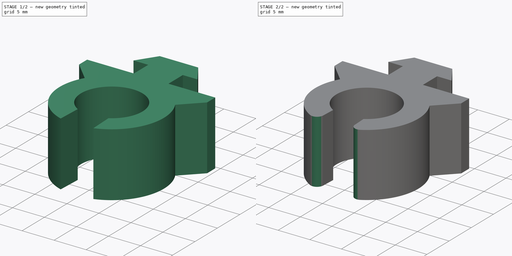
[diagram: build sequence overview — one tinted view per stage of 2, left to right]
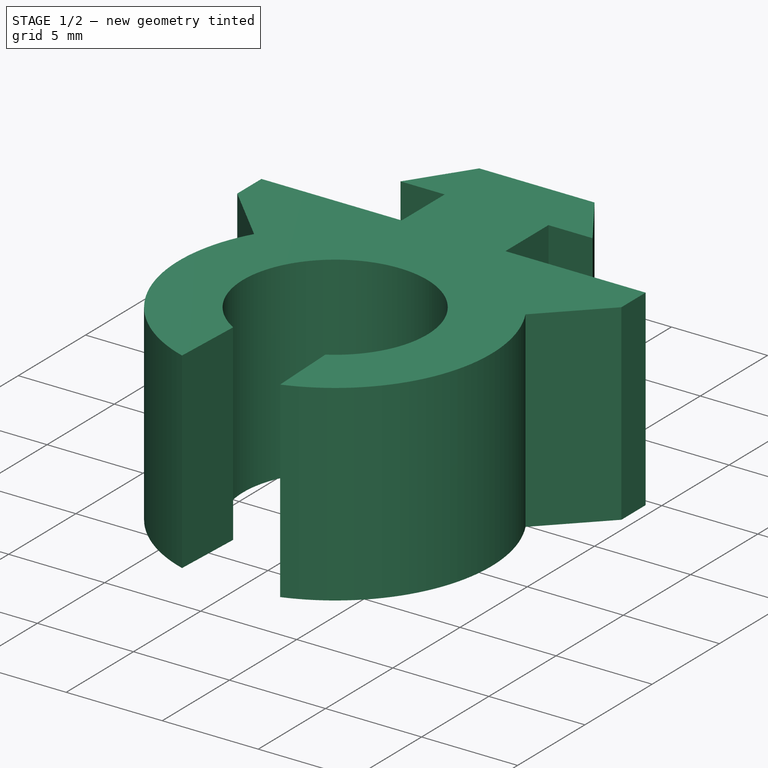
[diagram: stage 1 of 2 — iso view after this stage's code; geometry added in this stage tinted green]
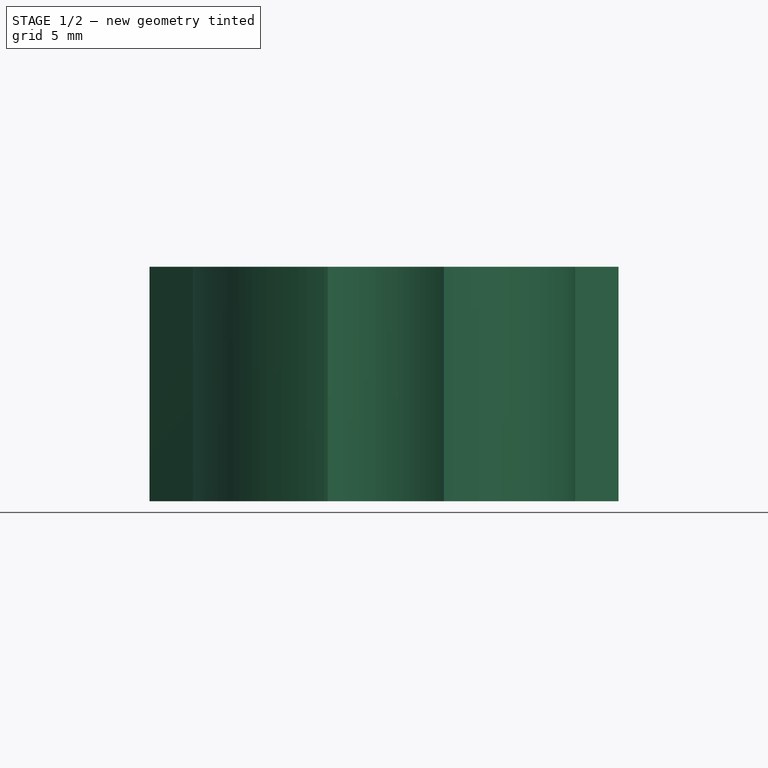
[diagram: stage 1 of 2 — front view after this stage's code; geometry added in this stage tinted green]
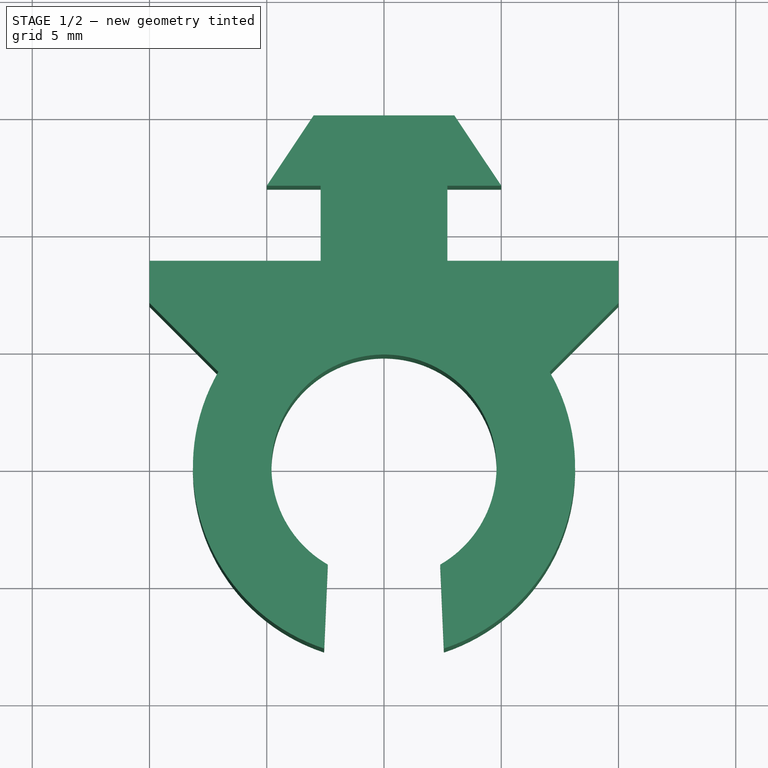
[diagram: stage 1 of 2 — top view after this stage's code; geometry added in this stage tinted green]
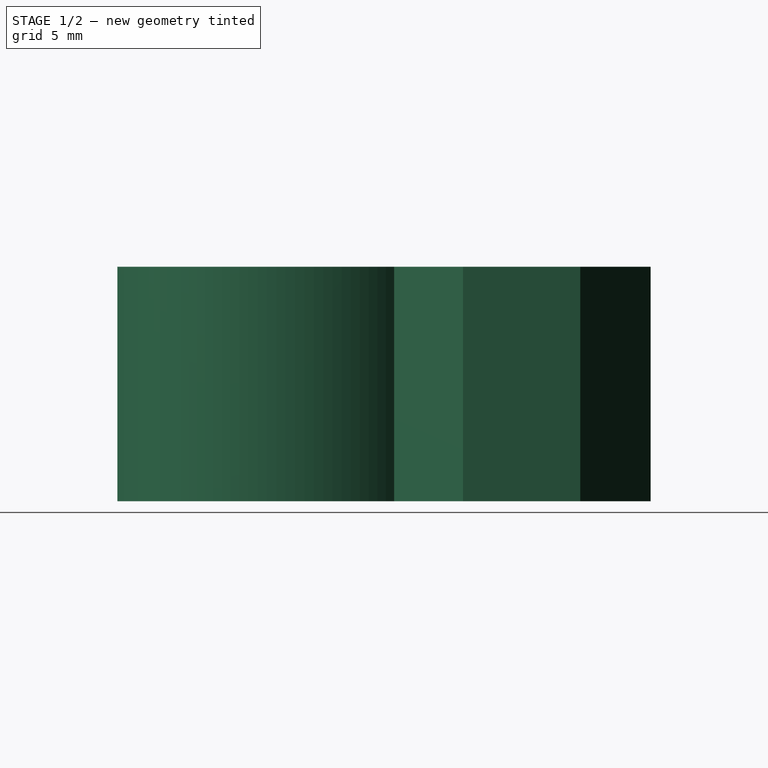
[diagram: stage 1 of 2 — right view after this stage's code; geometry added in this stage tinted green]
FCSTD DOCUMENT
Label: CableHolder
objects: Sketcher::SketchObject×2, PartDesign::Pad×1, PartDesign::Pocket×1, PartDesign::Fillet×1
note: 7 computed .brp shape members not serialized (recipe doc carries the construction recipe); baked Part::Feature solids carry a one-line shape summary decoded from their .brp

FEATURE [Sketcher::SketchObject] Sketch
  sketch-geometry (15):
    g0: ArcOfCircle CenterX=0 CenterY=0 CenterZ=0 NormalX=0 NormalY=0 NormalZ=1 Radius=8.15 StartAngle=2.61951 EndAngle=6.80527
    g1: LineSegment StartX=-10 StartY=8.8 StartZ=0 EndX=-2.7 EndY=8.8 EndZ=0
    g2: LineSegment StartX=10 StartY=8.8 StartZ=0 EndX=10 EndY=7 EndZ=0
    g3: LineSegment StartX=10 StartY=7 StartZ=0 EndX=7.06428 EndY=4.06428 EndZ=0
    g4: LineSegment StartX=-10 StartY=7 StartZ=0 EndX=-10 EndY=8.8 EndZ=0
    g5: LineSegment StartX=-7.06428 StartY=4.06428 StartZ=0 EndX=-10 EndY=7 EndZ=0
    g6: GeomPoint [constr] X=0 Y=8.8 Z=0
    g7: LineSegment StartX=-2.7 StartY=8.8 StartZ=0 EndX=-2.7 EndY=12 EndZ=0
    g8: LineSegment StartX=-2.7 StartY=12 StartZ=0 EndX=-5 EndY=12 EndZ=0
    g9: LineSegment StartX=-5 StartY=12 StartZ=0 EndX=-3 EndY=15 EndZ=0
    g10: LineSegment StartX=-3 StartY=15 StartZ=0 EndX=3 EndY=15 EndZ=0
    g11: LineSegment StartX=3 StartY=15 StartZ=0 EndX=5 EndY=12 EndZ=0
    g12: LineSegment StartX=5 StartY=12 StartZ=0 EndX=2.7 EndY=12 EndZ=0
    g13: LineSegment StartX=2.7 StartY=12 StartZ=0 EndX=2.7 EndY=8.8 EndZ=0
    g14: LineSegment StartX=2.7 StartY=8.8 StartZ=0 EndX=10 EndY=8.8 EndZ=0
  constraints (41):
    c: Coincident(g0,g-1)
    c: Coincident(g14,g2)
    c: Coincident(g2,g3)
    c: Coincident(g5,g4)
    c: Coincident(g4,g1)
    c: Vertical(g2)
    c: Vertical(g4)
    c: Coincident(g0,g5)
    c: Coincident(g0,g3)
    c: Equal(g2,g4)
    c: Equal(g5,g3)
    c: Symmetric(g1,g14,g6)
    c: PointOnObject(g6,g-2)
    c: Horizontal(g1)
    c: Vertical(g7)
    c: Perpendicular(g7,g8)
    c: Coincident(g8,g9)
    c: Coincident(g9,g10)
    c: Horizontal(g10)
    c: Coincident(g10,g11)
    c: Coincident(g11,g12)
    c: Horizontal(g12)
    c: Coincident(g12,g13)
    c: Vertical(g13)
    c: Coincident(g1,g7)
    c: Coincident(g14,g13)
    c: Tangent(g1,g14)
    c: Equal(g1,g14)
    c: Equal(g8,g12)
    c: Equal(g7,g13)
    c: Equal(g9,g11)
    c: DistanceY(g11,g2) = -3.2
    c: DistanceX(g10) = 6
    c: DistanceY(g8,g9) = 3
    c: DistanceX(g1,g2) = 20
    c: DistanceX(g1,g13) = 5.4
    c: DistanceY(g-1,g1) = 8.8
    c: DistanceY(g4) = 1.8
    c: Radius(g0) = 8.15
    c: Perpendicular(g5,g3)
    c: DistanceX(g8,g11) = 10
FEATURE [PartDesign::Pad] Pad
  Length = 10
  Length2 = 100
  Sketch = -> Sketch
  Type = 0
FEATURE [Sketcher::SketchObject] Sketch001
  Placement = pos=(0,0,10) rot=(0,0,1;0rad)
  Support = -> Pad [Face16]
  sketch-geometry (5):
    g0: ArcOfCircle CenterX=0 CenterY=0 CenterZ=0 NormalX=0 NormalY=0 NormalZ=1 Radius=4.8 StartAngle=5.23599 EndAngle=10.472
    g1: LineSegment StartX=-2.4 StartY=-4.15692 StartZ=0 EndX=-2.61411 EndY=-9.15692 EndZ=0
    g2: LineSegment StartX=-2.61411 StartY=-9.15692 StartZ=0 EndX=2.61411 EndY=-9.15692 EndZ=0
    g3: LineSegment StartX=2.61411 StartY=-9.15692 StartZ=0 EndX=2.4 EndY=-4.15692 EndZ=0
    g4: GeomPoint [constr] X=0 Y=-9.15692 Z=0
  constraints (13):
    c: Coincident(g0,g-1)
    c: Radius(g0) = 4.8
    c: Coincident(g1,g2)
    c: Horizontal(g2)
    c: Coincident(g2,g3)
    c: Coincident(g0,g3)
    c: Coincident(g0,g1)
    c: Symmetric(g1,g2,g4)
    c: PointOnObject(g4,g-2)
    c: DistanceX(g0,g0) = 4.8
    c: Equal(g1,g3)
    c: Angle(g1,g3) = 0.085591
    c: DistanceY(g3) = 5
FEATURE [PartDesign::Pocket] Pocket
  Length = 5
  Sketch = -> Sketch001
  Type = 1
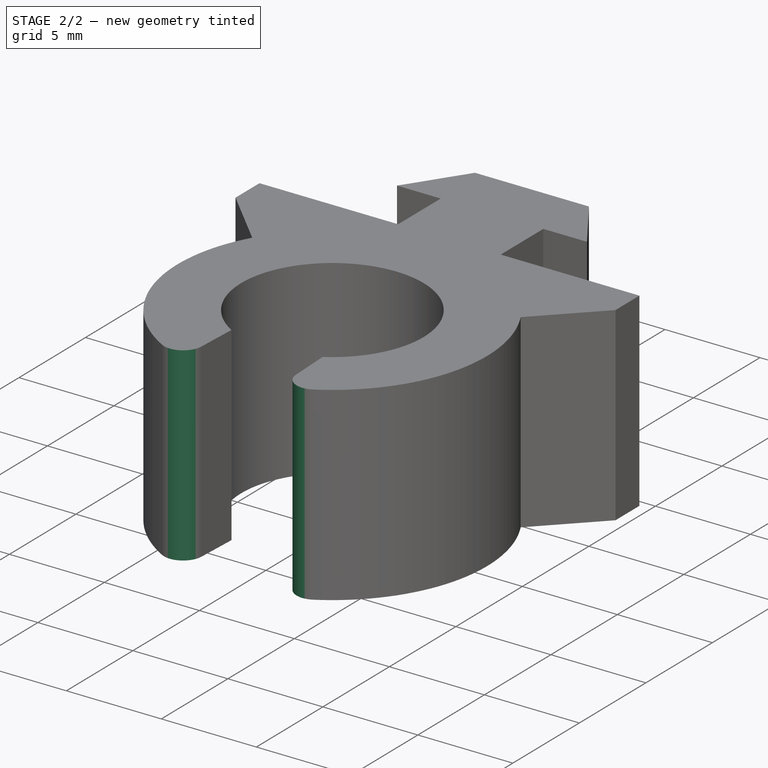
[diagram: stage 2 of 2 — iso view after this stage's code; geometry added in this stage tinted green]
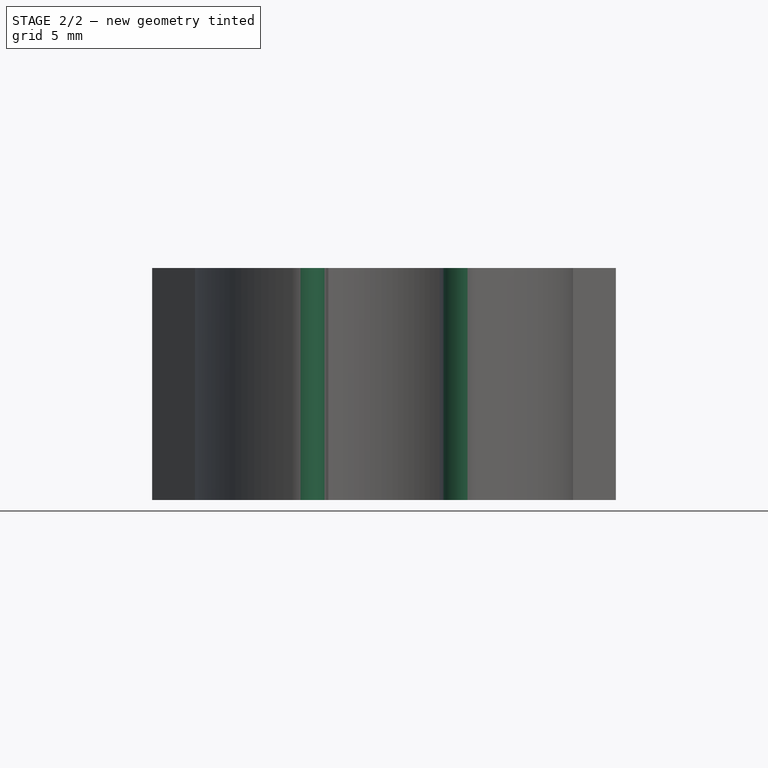
[diagram: stage 2 of 2 — front view after this stage's code; geometry added in this stage tinted green]
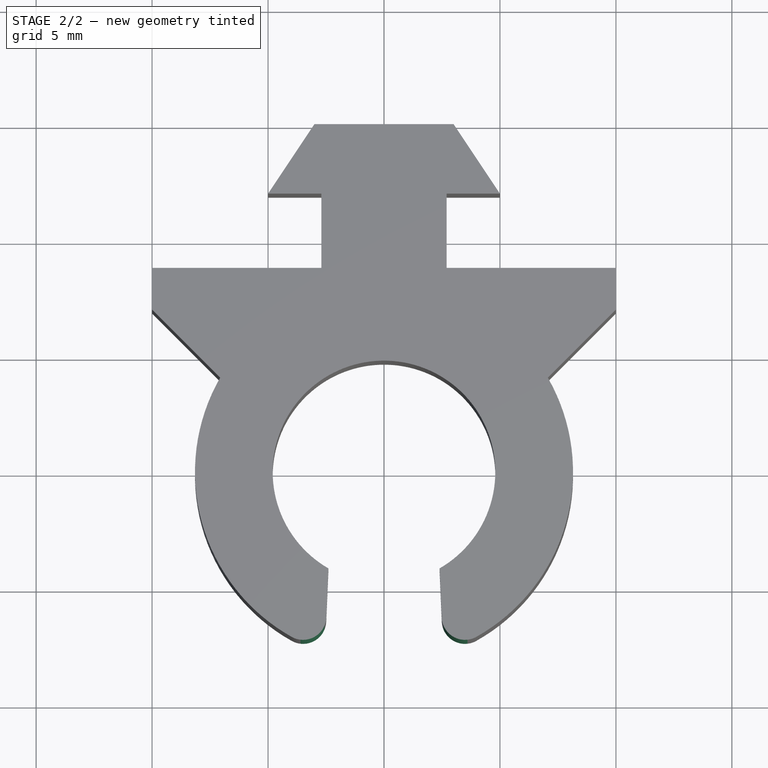
[diagram: stage 2 of 2 — top view after this stage's code; geometry added in this stage tinted green]
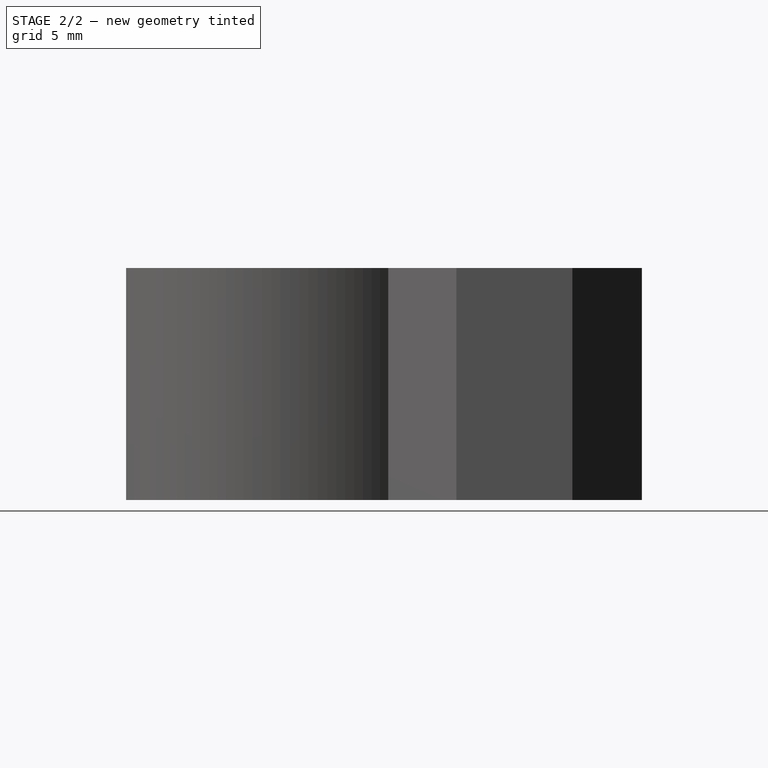
[diagram: stage 2 of 2 — right view after this stage's code; geometry added in this stage tinted green]
FEATURE [PartDesign::Fillet] Fillet
  Base = -> Pocket [Edge53,Edge8]
  Radius = 1
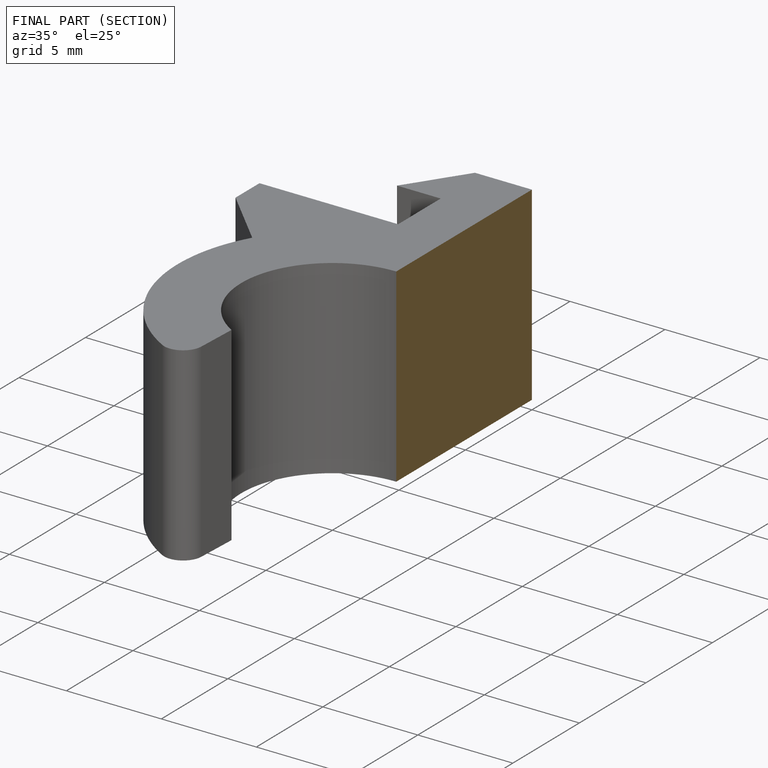
[diagram: finished part — half-section view (interior)]
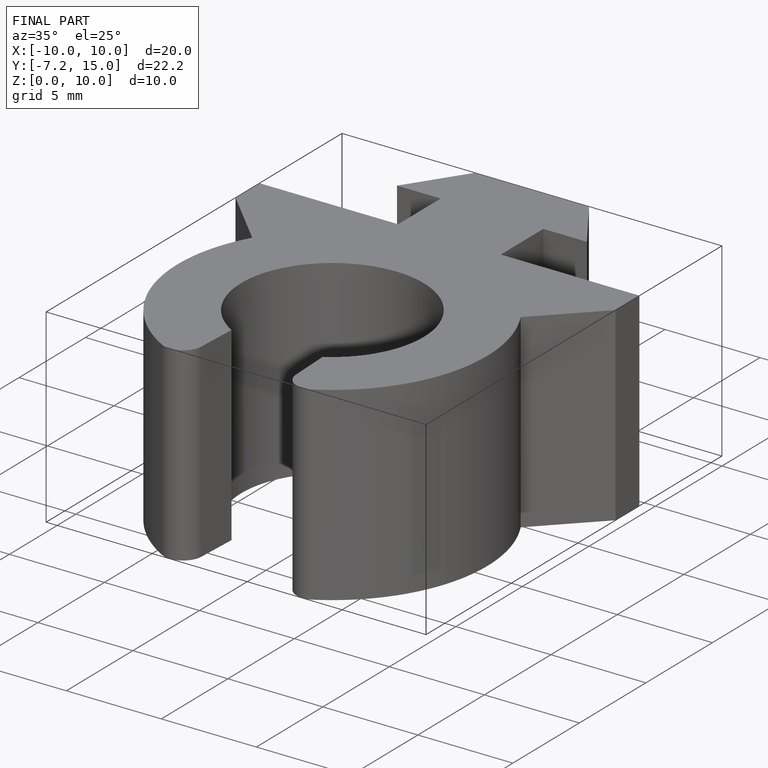
[diagram: finished part — iso view with bounding-box wireframe]
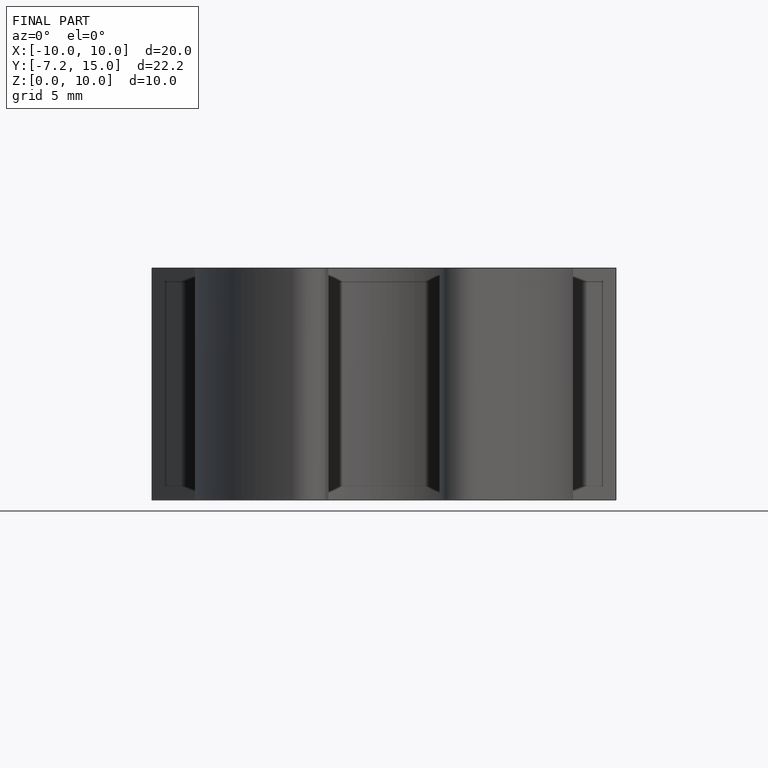
[diagram: finished part — front view with bounding-box wireframe]
